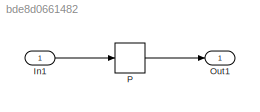
MODEL slx_bde8d0661482
KIND model
CONFIG AbsTol = auto
CONFIG EnableMultiTasking = off
CONFIG FixedStep = auto
CONFIG MaxStep = auto
CONFIG MinStep = auto
CONFIG RelTol = 1e-3
CONFIG SampleTimeConstraint = Unconstrained
CONFIG Solver = FixedStepDiscrete
CONFIG SolverName = FixedStepDiscrete
CONFIG StartTime = 0.0
CONFIG StopTime = 10.0
BLOCK [Inport] In1
  IconDisplay = Port number
  PortDimensions = 5
BLOCK [Outport] Out1
  IconDisplay = Port number
BLOCK [Lookup_n-D] P
  BreakpointsForDimension1FirstPoint = 88.9975
  BreakpointsForDimension1Spacing = 1.5
  BreakpointsForDimension2FirstPoint = 109.5986
  BreakpointsForDimension2Spacing = 1.5
  BreakpointsForDimension3 = [5, 7]
  BreakpointsForDimension3FirstPoint = 26.6431
  BreakpointsForDimension3Spacing = 1.5
  BreakpointsForDimension4FirstPoint = 48.929
  BreakpointsForDimension4Spacing = 1.5
  BreakpointsForDimension5FirstPoint = 101.6878
  BreakpointsForDimension5Spacing = 1.5
  BreakpointsSpecification = Even spacing
  InternalRulePriority = Speed
  InterpMethod = Flat
  NumberOfTableDimensions = 5
  Ports = [1, 1]
  RndMeth = Simplest
  Table = reshape(repmat([4 5 6 7 8;16 19 20 21 22;10 18 23 24 25],6,2),[2,5,3,2,3])
  UseOneInputPortForAllInputData = on
LINE In1:1 -> P:1
LINE P:1 -> Out1:1
